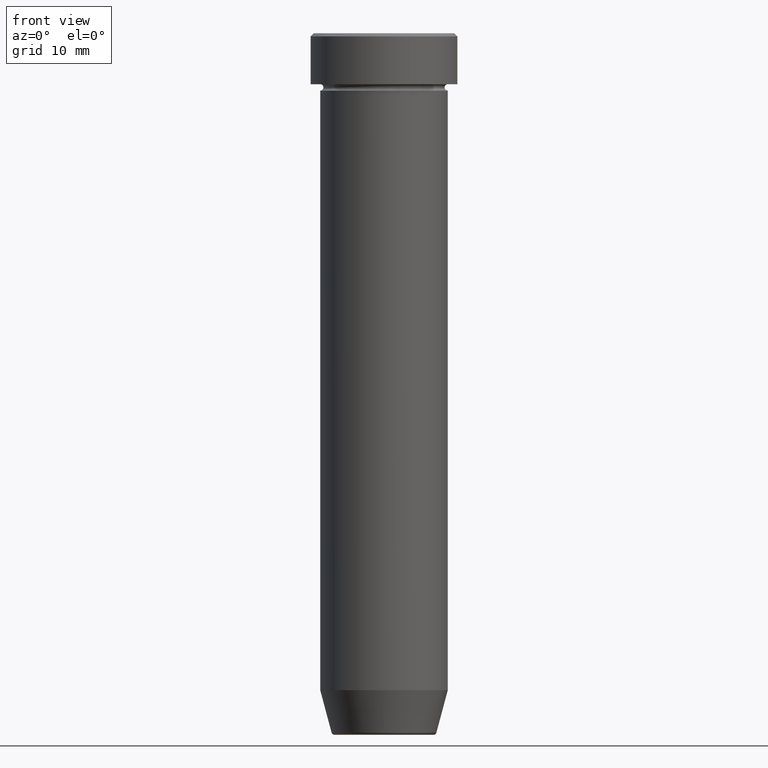
[diagram: clean part render]
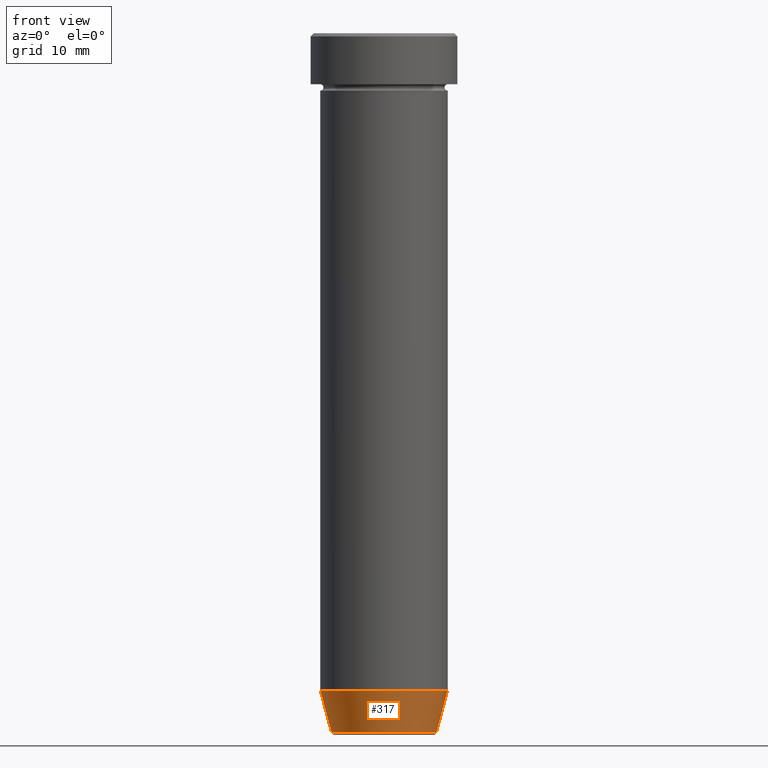
[diagram: same view with one face highlighted and labeled with its STEP entity id]
A machine part, front view. The second image highlights one B-rep face of the part: STEP entity #317.
In plain terms, the highlighted conical surface has half-angle 15 deg.
Its self-contained STEP definition (entity closure, byte-faithful):
#22 = EDGE_CURVE ( 'NONE', #51, #410, #153, .T. ) ;
#25 = FACE_OUTER_BOUND ( 'NONE', #392, .T. ) ;
#27 = CARTESIAN_POINT ( 'NONE',  ( 0.000000000000000000, 0.000000000000000000, -109.6294095225512564 ) ) ;
#51 = VERTEX_POINT ( 'NONE', #308 ) ;
#67 = ORIENTED_EDGE ( 'NONE', *, *, #85, .F. ) ;
#73 = AXIS2_PLACEMENT_3D ( 'NONE', #27, #429, #128 ) ;
#85 = EDGE_CURVE ( 'NONE', #440, #51, #239, .T. ) ;
#87 = ORIENTED_EDGE ( 'NONE', *, *, #420, .T. ) ;
#128 = DIRECTION ( 'NONE',  ( -1.000000000000000000, 0.000000000000000000, 0.000000000000000000 ) ) ;
#153 = CIRCLE ( 'NONE', #369, 10.00000000000000000 ) ;
#155 = VECTOR ( 'NONE', #479, 1000.000000000000000 ) ;
#164 = CARTESIAN_POINT ( 'NONE',  ( 0.000000000000000000, 0.000000000000000000, -109.9999999999999858 ) ) ;
#165 = DIRECTION ( 'NONE',  ( 1.000000000000000000, 0.000000000000000000, 0.000000000000000000 ) ) ;
#169 = DIRECTION ( 'NONE',  ( -0.000000000000000000, -0.000000000000000000, 1.000000000000000000 ) ) ;
#221 = DIRECTION ( 'NONE',  ( 1.000000000000000000, 0.000000000000000000, 0.000000000000000000 ) ) ;
#230 = CARTESIAN_POINT ( 'NONE',  ( -8.124355652982135467, 9.949466145559276583E-16, -109.9999999999999858 ) ) ;
#239 = LINE ( 'NONE', #230, #412 ) ;
#258 = AXIS2_PLACEMENT_3D ( 'NONE', #164, #439, #221 ) ;
#295 = ORIENTED_EDGE ( 'NONE', *, *, #407, .T. ) ;
#308 = CARTESIAN_POINT ( 'NONE',  ( -10.00000000000000000, 1.224646799147353256E-15, -102.9999999999999858 ) ) ;
#317 = ADVANCED_FACE ( 'NONE', ( #25 ), #436, .T. ) ;
#331 = VERTEX_POINT ( 'NONE', #584 ) ;
#355 = CARTESIAN_POINT ( 'NONE',  ( 8.124355652982135467, 0.000000000000000000, -109.9999999999999858 ) ) ;
#369 = AXIS2_PLACEMENT_3D ( 'NONE', #447, #169, #165 ) ;
#392 = EDGE_LOOP ( 'NONE', ( #67, #295, #87, #598 ) ) ;
#404 = CIRCLE ( 'NONE', #73, 8.223655072137187716 ) ;
#407 = EDGE_CURVE ( 'NONE', #440, #331, #404, .T. ) ;
#410 = VERTEX_POINT ( 'NONE', #589 ) ;
#412 = VECTOR ( 'NONE', #516, 1000.000000000000000 ) ;
#420 = EDGE_CURVE ( 'NONE', #331, #410, #532, .T. ) ;
#429 = DIRECTION ( 'NONE',  ( -0.000000000000000000, -0.000000000000000000, 1.000000000000000000 ) ) ;
#436 = CONICAL_SURFACE ( 'NONE', #258, 8.124355652982135467, 0.2617993877991500740 ) ;
#439 = DIRECTION ( 'NONE',  ( -0.000000000000000000, -0.000000000000000000, 1.000000000000000000 ) ) ;
#440 = VERTEX_POINT ( 'NONE', #535 ) ;
#447 = CARTESIAN_POINT ( 'NONE',  ( 0.000000000000000000, 0.000000000000000000, -102.9999999999999858 ) ) ;
#479 = DIRECTION ( 'NONE',  ( 0.2588190451025213501, 0.000000000000000000, 0.9659258262890680902 ) ) ;
#516 = DIRECTION ( 'NONE',  ( -0.2588190451025213501, 3.169619151431772337E-17, 0.9659258262890680902 ) ) ;
#532 = LINE ( 'NONE', #355, #155 ) ;
#535 = CARTESIAN_POINT ( 'NONE',  ( -8.223655072137187716, 1.115877042642911856E-15, -109.6294095225512564 ) ) ;
#584 = CARTESIAN_POINT ( 'NONE',  ( 8.223655072137187716, 0.000000000000000000, -109.6294095225512564 ) ) ;
#589 = CARTESIAN_POINT ( 'NONE',  ( 10.00000000000000000, 0.000000000000000000, -102.9999999999999858 ) ) ;
#598 = ORIENTED_EDGE ( 'NONE', *, *, #22, .F. ) ;